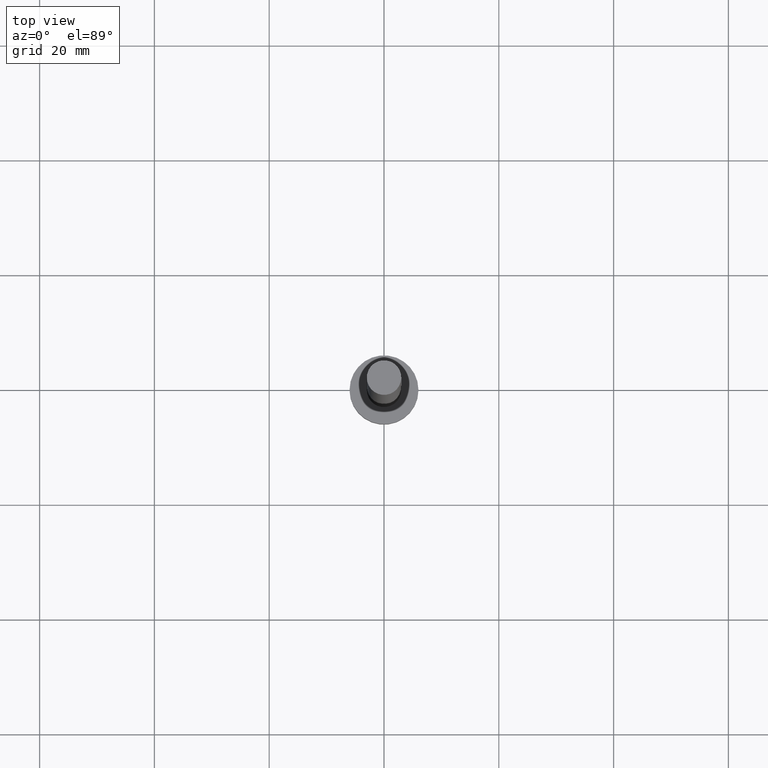
[diagram: clean part render]
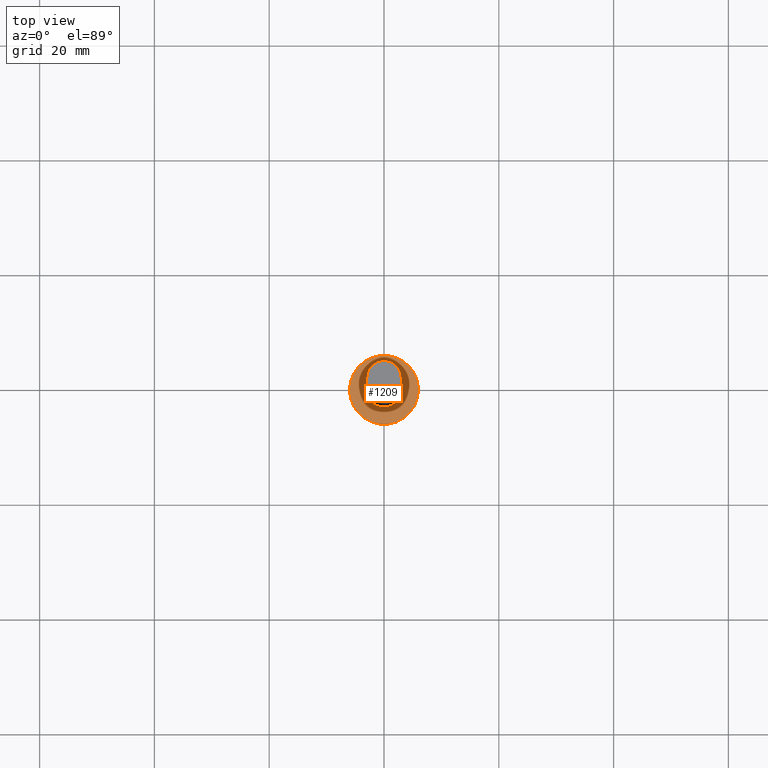
[diagram: same view with one face highlighted and labeled with its STEP entity id]
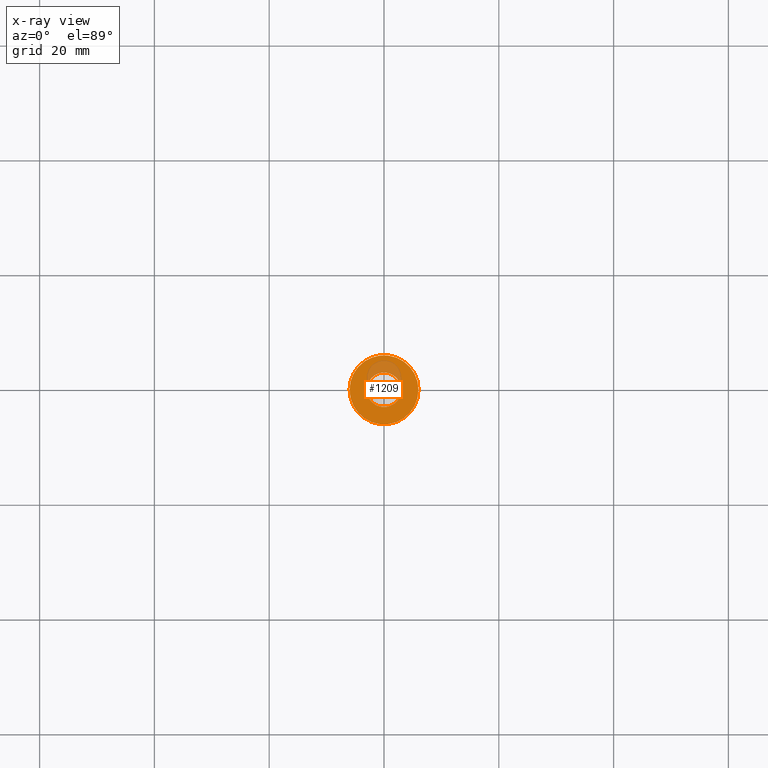
[diagram: x-ray of the same camera — body ghosted, the highlighted face saturated]
A machine part, top view. The second image highlights one B-rep face of the part: STEP entity #1209.
The next image is the same camera in x-ray: the body ghosted, the highlighted face saturated — about 15% of this face is hidden behind the body in this view.
In plain terms, the highlighted planar face has unit normal (0, 0, 1).
Its self-contained STEP definition (entity closure, byte-faithful):
#34 = FACE_OUTER_BOUND ( 'NONE', #151, .T. ) ;
#41 = CARTESIAN_POINT ( 'NONE',  ( 0.000000000000000000, 0.000000000000000000, 5.000000000000000000 ) ) ;
#44 = EDGE_CURVE ( 'NONE', #661, #721, #524, .T. ) ;
#149 = EDGE_CURVE ( 'NONE', #1283, #616, #1344, .T. ) ;
#151 = EDGE_LOOP ( 'NONE', ( #496, #711 ) ) ;
#159 = DIRECTION ( 'NONE',  ( 0.000000000000000000, 0.000000000000000000, 1.000000000000000000 ) ) ;
#246 = DIRECTION ( 'NONE',  ( 1.000000000000000000, 0.000000000000000000, -0.000000000000000000 ) ) ;
#319 = EDGE_LOOP ( 'NONE', ( #1382, #1161 ) ) ;
#326 = CARTESIAN_POINT ( 'NONE',  ( 0.000000000000000000, 0.000000000000000000, 5.000000000000000000 ) ) ;
#333 = DIRECTION ( 'NONE',  ( 0.000000000000000000, 0.000000000000000000, 1.000000000000000000 ) ) ;
#366 = PLANE ( 'NONE',  #634 ) ;
#386 = CIRCLE ( 'NONE', #1200, 6.000000000000000888 ) ;
#437 = DIRECTION ( 'NONE',  ( 1.000000000000000000, 0.000000000000000000, 0.000000000000000000 ) ) ;
#493 = DIRECTION ( 'NONE',  ( 1.000000000000000000, 0.000000000000000000, 0.000000000000000000 ) ) ;
#496 = ORIENTED_EDGE ( 'NONE', *, *, #149, .T. ) ;
#524 = CIRCLE ( 'NONE', #906, 3.000000000000000444 ) ;
#555 = DIRECTION ( 'NONE',  ( 1.000000000000000000, 0.000000000000000000, 0.000000000000000000 ) ) ;
#567 = CARTESIAN_POINT ( 'NONE',  ( -3.000000000000000444, 0.000000000000000000, 5.000000000000000000 ) ) ;
#579 = CARTESIAN_POINT ( 'NONE',  ( 6.000000000000000888, 7.347880794884120722E-16, 5.000000000000000000 ) ) ;
#616 = VERTEX_POINT ( 'NONE', #579 ) ;
#634 = AXIS2_PLACEMENT_3D ( 'NONE', #1291, #1168, #246 ) ;
#661 = VERTEX_POINT ( 'NONE', #567 ) ;
#710 = FACE_BOUND ( 'NONE', #319, .T. ) ;
#711 = ORIENTED_EDGE ( 'NONE', *, *, #905, .T. ) ;
#721 = VERTEX_POINT ( 'NONE', #1146 ) ;
#807 = AXIS2_PLACEMENT_3D ( 'NONE', #41, #1069, #493 ) ;
#905 = EDGE_CURVE ( 'NONE', #616, #1283, #386, .T. ) ;
#906 = AXIS2_PLACEMENT_3D ( 'NONE', #326, #333, #437 ) ;
#922 = EDGE_CURVE ( 'NONE', #721, #661, #1313, .T. ) ;
#939 = CARTESIAN_POINT ( 'NONE',  ( -6.000000000000000888, 0.000000000000000000, 5.000000000000000000 ) ) ;
#1069 = DIRECTION ( 'NONE',  ( 0.000000000000000000, 0.000000000000000000, 1.000000000000000000 ) ) ;
#1090 = CARTESIAN_POINT ( 'NONE',  ( 0.000000000000000000, 0.000000000000000000, 5.000000000000000000 ) ) ;
#1104 = DIRECTION ( 'NONE',  ( 0.000000000000000000, 0.000000000000000000, 1.000000000000000000 ) ) ;
#1119 = CARTESIAN_POINT ( 'NONE',  ( 0.000000000000000000, 0.000000000000000000, 5.000000000000000000 ) ) ;
#1146 = CARTESIAN_POINT ( 'NONE',  ( 3.000000000000000444, 3.673940397442060361E-16, 5.000000000000000000 ) ) ;
#1148 = AXIS2_PLACEMENT_3D ( 'NONE', #1119, #1104, #555 ) ;
#1161 = ORIENTED_EDGE ( 'NONE', *, *, #922, .F. ) ;
#1168 = DIRECTION ( 'NONE',  ( 0.000000000000000000, 0.000000000000000000, 1.000000000000000000 ) ) ;
#1200 = AXIS2_PLACEMENT_3D ( 'NONE', #1090, #159, #1326 ) ;
#1209 = ADVANCED_FACE ( 'NONE', ( #710, #34 ), #366, .T. ) ;
#1283 = VERTEX_POINT ( 'NONE', #939 ) ;
#1291 = CARTESIAN_POINT ( 'NONE',  ( 0.000000000000000000, 0.000000000000000000, 5.000000000000000000 ) ) ;
#1313 = CIRCLE ( 'NONE', #807, 3.000000000000000444 ) ;
#1326 = DIRECTION ( 'NONE',  ( 1.000000000000000000, 0.000000000000000000, 0.000000000000000000 ) ) ;
#1344 = CIRCLE ( 'NONE', #1148, 6.000000000000000888 ) ;
#1382 = ORIENTED_EDGE ( 'NONE', *, *, #44, .F. ) ;